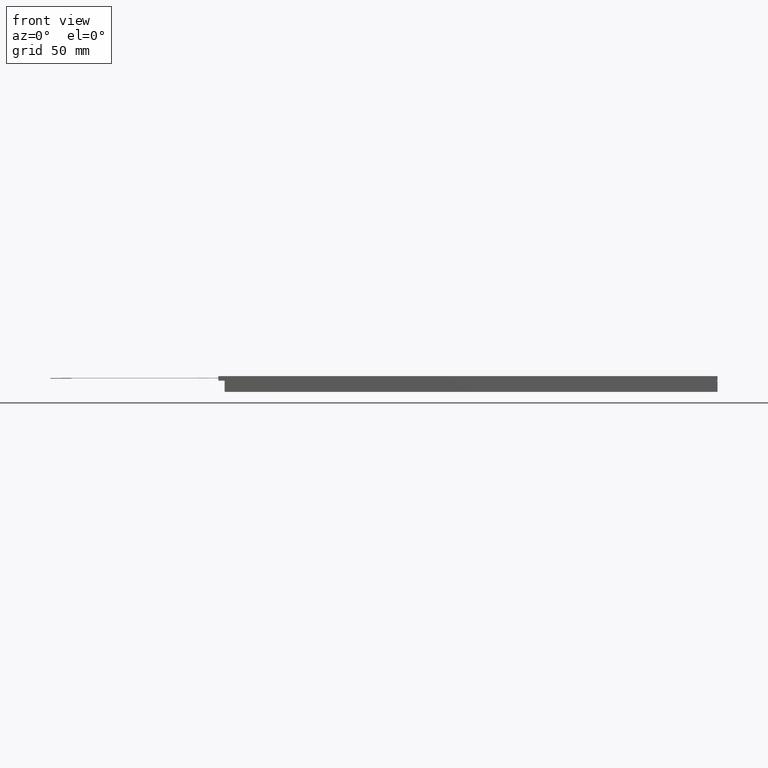
[diagram: clean part render]
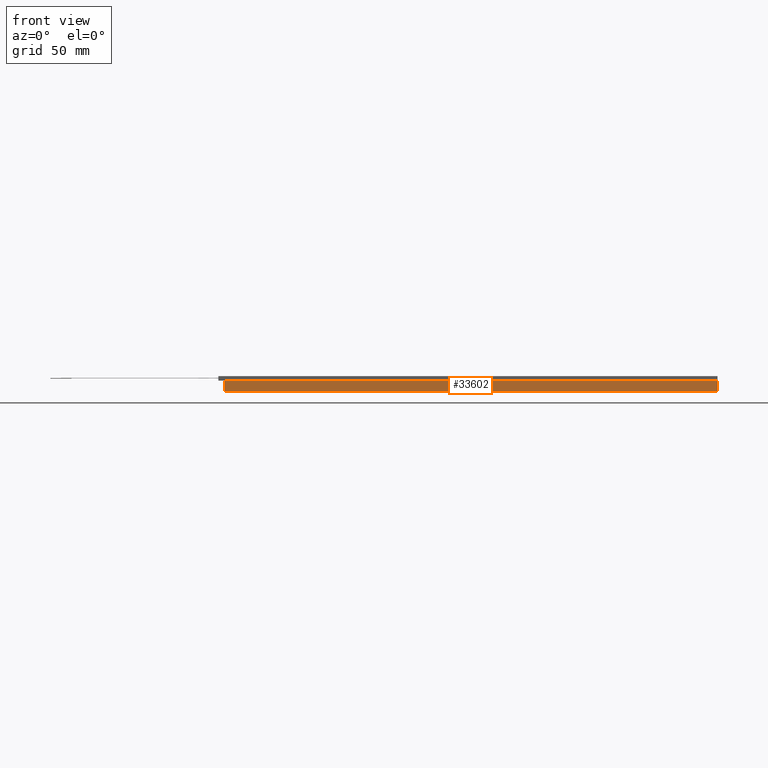
[diagram: same view with one face highlighted and labeled with its STEP entity id]
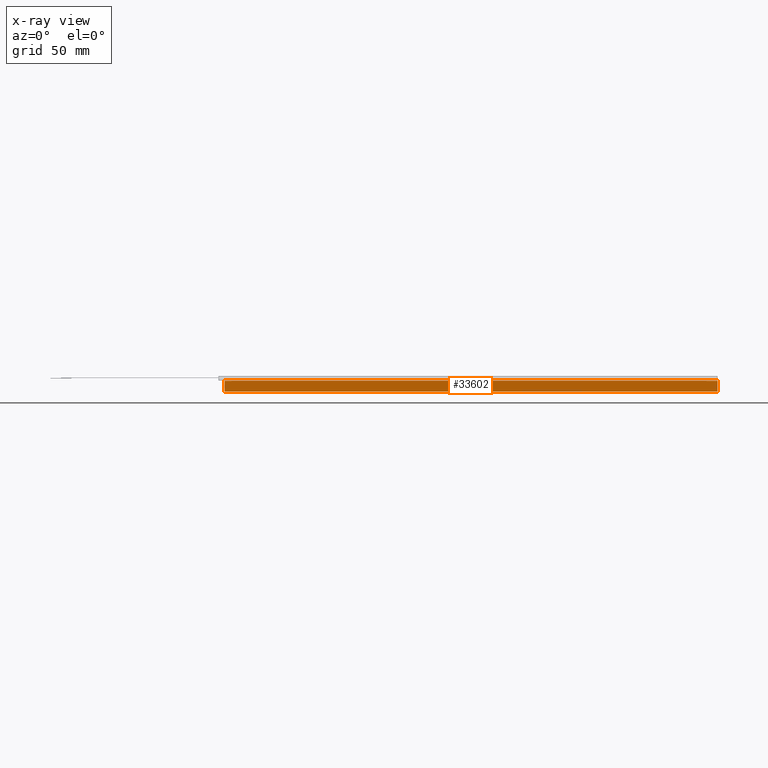
[diagram: x-ray of the same camera — body ghosted, the highlighted face saturated]
A machine part, front view. The second image highlights one B-rep face of the part: STEP entity #33602.
The next image is the same camera in x-ray: the body ghosted, the highlighted face saturated — about 0% of this face is hidden behind the body in this view.
In plain terms, the highlighted planar face has unit normal (-0, -1, 0).
Its self-contained STEP definition (entity closure, byte-faithful):
#3569=FACE_OUTER_BOUND('',#5373,.T.);
#5373=EDGE_LOOP('',(#30807,#30808,#30809,#30810));
#9096=LINE('',#57129,#12824);
#9102=LINE('',#57140,#12830);
#9103=LINE('',#57143,#12831);
#9104=LINE('',#57144,#12832);
#12824=VECTOR('',#45679,10.);
#12830=VECTOR('',#45687,10.);
#12831=VECTOR('',#45690,10.);
#12832=VECTOR('',#45691,10.);
#16081=VERTEX_POINT('',#57126);
#16082=VERTEX_POINT('',#57128);
#16086=VERTEX_POINT('',#57138);
#16087=VERTEX_POINT('',#57142);
#20991=EDGE_CURVE('',#16082,#16081,#9096,.T.);
#20997=EDGE_CURVE('',#16081,#16086,#9102,.T.);
#20998=EDGE_CURVE('',#16087,#16086,#9103,.T.);
#20999=EDGE_CURVE('',#16082,#16087,#9104,.T.);
#30807=ORIENTED_EDGE('',*,*,#20991,.T.);
#30808=ORIENTED_EDGE('',*,*,#20997,.T.);
#30809=ORIENTED_EDGE('',*,*,#20998,.F.);
#30810=ORIENTED_EDGE('',*,*,#20999,.F.);
#31932=PLANE('',#36405);
#33602=ADVANCED_FACE('',(#3569),#31932,.T.);
#36405=AXIS2_PLACEMENT_3D('',#57141,#45688,#45689);
#45679=DIRECTION('',(-1.,3.19632027701257E-17,-7.85439421835399E-15));
#45687=DIRECTION('',(7.85439421835399E-15,-4.33680868993491E-18,-1.));
#45688=DIRECTION('center_axis',(-3.19632027701258E-17,-1.,4.33680868993466E-18));
#45689=DIRECTION('ref_axis',(-1.,3.19632027701257E-17,-7.85439421835399E-15));
#45690=DIRECTION('',(-1.,3.19632027701257E-17,-7.85439421835399E-15));
#45691=DIRECTION('',(7.85439421835399E-15,-4.33680868993491E-18,-1.));
#57126=CARTESIAN_POINT('',(-397.714560013878,-14.4764198126346,-85.6070944214073));
#57128=CARTESIAN_POINT('',(-162.714560013878,-14.4764198126346,-85.6070944214054));
#57129=CARTESIAN_POINT('',(-162.714560013878,-14.4764198126346,-85.6070944214054));
#57138=CARTESIAN_POINT('',(-397.714560013878,-14.4764198126346,-90.8070944214073));
#57140=CARTESIAN_POINT('',(-397.714560013878,-14.4764198126346,-85.6070944214073));
#57141=CARTESIAN_POINT('Origin',(-162.714560013878,-14.4764198126346,-85.6070944214054));
#57142=CARTESIAN_POINT('',(-162.714560013878,-14.4764198126346,-90.8070944214054));
#57143=CARTESIAN_POINT('',(-162.714560013878,-14.4764198126346,-90.8070944214054));
#57144=CARTESIAN_POINT('',(-162.714560013878,-14.4764198126346,-85.6070944214054));